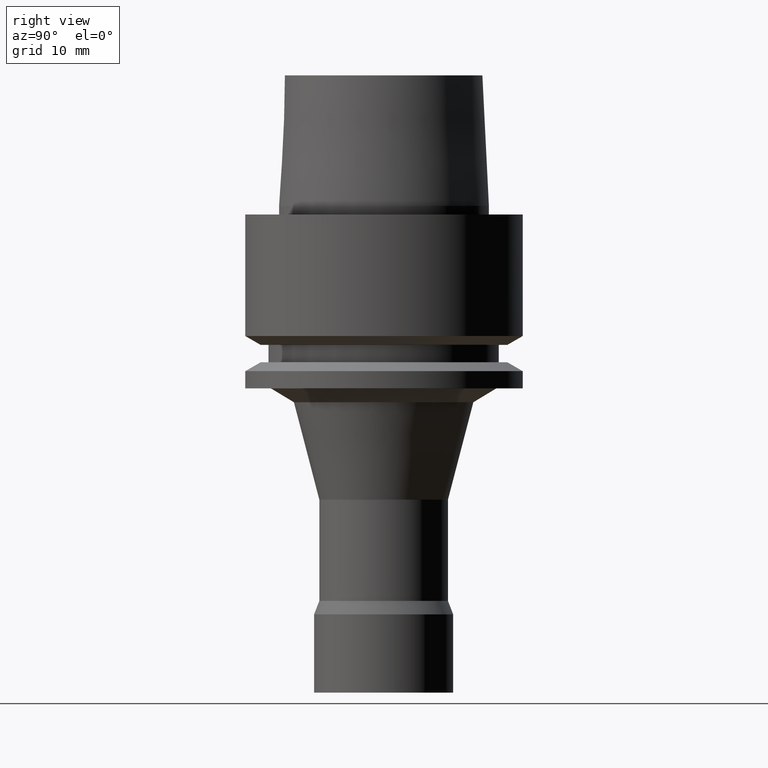
[diagram: clean part render]
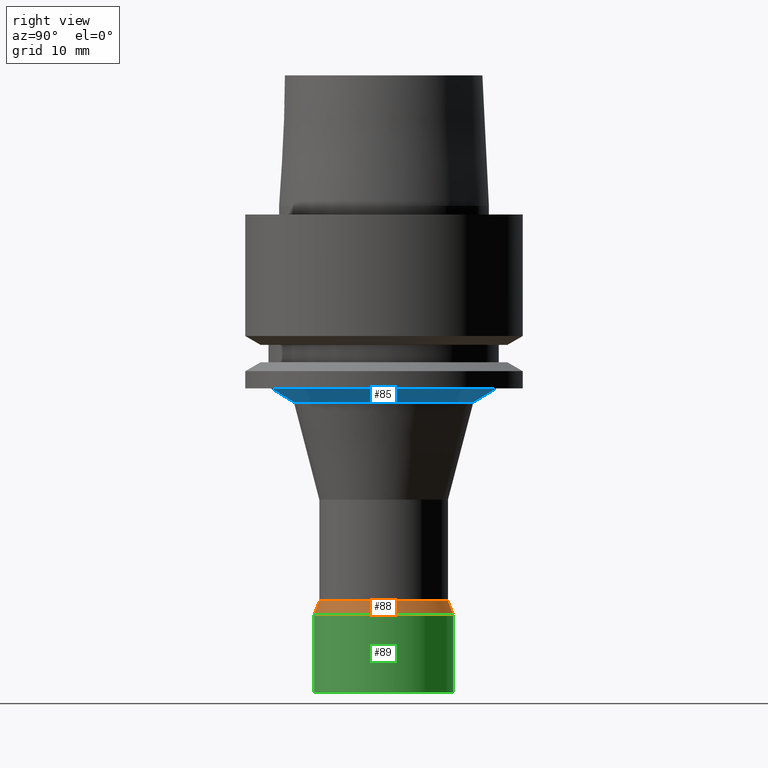
[diagram: same view with three faces highlighted in distinct colors, each labeled with its STEP entity id]
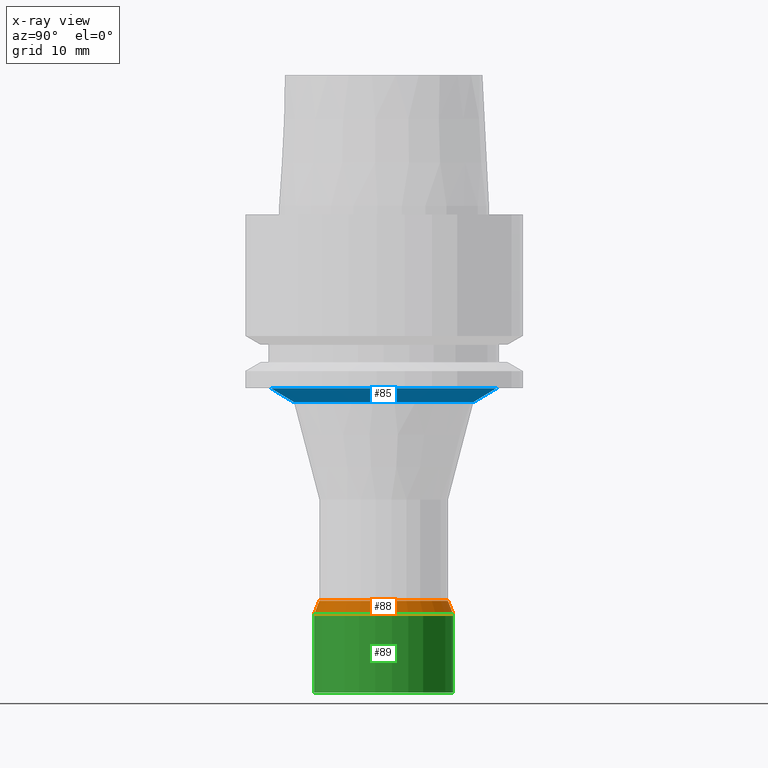
[diagram: x-ray of the same camera — body ghosted, the three highlighted faces saturated]
A machine part, right view with three faces highlighted in distinct colors.
The next image is the same camera in x-ray (body ghosted, the three faces saturated) — at least one of them is partly hidden behind the body in this view.
Their STEP definitions:

[orange] entity #88 — the highlighted conical surface has half-angle 21.168 deg.
#88=ADVANCED_FACE('',(#133,#134),#135,.T.);
#133=FACE_BOUND('',#185,.T.);
#134=FACE_BOUND('',#186,.T.);
#135=CONICAL_SURFACE('',#187,7.7,0.369443265532845);
#185=EDGE_LOOP('',(#263));
#186=EDGE_LOOP('',(#264));
#187=AXIS2_PLACEMENT_3D('',#265,#266,#267);
#263=ORIENTED_EDGE('',*,*,#300,.F.);
#264=ORIENTED_EDGE('',*,*,#299,.T.);
#265=CARTESIAN_POINT('',(2.76924802073587E-015,5.53849604147174E-015,-45.225252255));
#266=DIRECTION('',(6.12323399573677E-017,1.22464679914735E-016,-1.0));
#267=DIRECTION('',(-1.23259516440783E-032,1.0,1.22464679914735E-016));
#299=EDGE_CURVE('',#329,#329,#330,.T.);
#300=EDGE_CURVE('',#331,#331,#332,.T.);
#329=VERTEX_POINT('',#363);
#330=CIRCLE('',#364,7.4);
#331=VERTEX_POINT('',#365);
#332=CIRCLE('',#366,8.0);
#363=CARTESIAN_POINT('',(2.72180840343282E-015,7.40000000000001,-44.45050451));
#364=AXIS2_PLACEMENT_3D('',#410,#411,#412);
#365=CARTESIAN_POINT('',(2.81668763803891E-015,8.00000000000001,-46.0));
#366=AXIS2_PLACEMENT_3D('',#413,#414,#415);
#410=CARTESIAN_POINT('',(2.72180840343282E-015,5.44361680686565E-015,-44.45050451));
#411=DIRECTION('',(6.12323399573677E-017,1.22464679914735E-016,-1.0));
#412=DIRECTION('',(-1.23259516440783E-032,1.0,1.22464679914735E-016));
#413=CARTESIAN_POINT('',(2.81668763803891E-015,5.63337527607782E-015,-46.0));
#414=DIRECTION('',(6.12323399573677E-017,1.22464679914735E-016,-1.0));
#415=DIRECTION('',(-1.23259516440783E-032,1.0,1.22464679914735E-016));

[blue] entity #85 — the highlighted conical surface has half-angle 58.921 deg.
#85=ADVANCED_FACE('',(#124,#125),#126,.T.);
#124=FACE_BOUND('',#176,.T.);
#125=FACE_BOUND('',#177,.T.);
#126=CONICAL_SURFACE('',#178,11.6472496628089,1.02836489206935);
#176=EDGE_LOOP('',(#248));
#177=EDGE_LOOP('',(#249));
#178=AXIS2_PLACEMENT_3D('',#250,#251,#252);
#248=ORIENTED_EDGE('',*,*,#297,.F.);
#249=ORIENTED_EDGE('',*,*,#296,.T.);
#250=CARTESIAN_POINT('',(1.27359893553428E-015,2.54719787106855E-015,-20.7994490561851));
#251=DIRECTION('',(-6.12323399573677E-017,-1.22464679914735E-016,1.0));
#252=DIRECTION('',(-1.23259516440783E-032,1.0,1.22464679914735E-016));
#296=EDGE_CURVE('',#323,#323,#324,.T.);
#297=EDGE_CURVE('',#325,#325,#326,.T.);
#323=VERTEX_POINT('',#357);
#324=CIRCLE('',#358,12.97360873);
#325=VERTEX_POINT('',#359);
#326=CIRCLE('',#360,10.3208905956178);
#357=CARTESIAN_POINT('',(1.22464679914735E-015,12.97360873,-20.0));
#358=AXIS2_PLACEMENT_3D('',#401,#402,#403);
#359=CARTESIAN_POINT('',(1.3225510719212E-015,10.3208905956178,-21.5988981123702));
#360=AXIS2_PLACEMENT_3D('',#404,#405,#406);
#401=CARTESIAN_POINT('',(1.22464679914735E-015,2.44929359829471E-015,-20.0));
#402=DIRECTION('',(6.12323399573677E-017,1.22464679914735E-016,-1.0));
#403=DIRECTION('',(-1.23259516440783E-032,1.0,1.22464679914735E-016));
#404=CARTESIAN_POINT('',(1.3225510719212E-015,2.64510214384239E-015,-21.5988981123702));
#405=DIRECTION('',(6.12323399573677E-017,1.22464679914735E-016,-1.0));
#406=DIRECTION('',(-1.23259516440783E-032,1.0,1.22464679914735E-016));

[green] entity #89 — the highlighted cylindrical surface (bore or boss wall) has radius 8 mm, axis along (-0, -0, 1).
#89=ADVANCED_FACE('',(#136,#137),#138,.T.);
#136=FACE_BOUND('',#188,.T.);
#137=FACE_BOUND('',#189,.T.);
#138=CYLINDRICAL_SURFACE('',#190,8.0);
#188=EDGE_LOOP('',(#268));
#189=EDGE_LOOP('',(#269));
#190=AXIS2_PLACEMENT_3D('',#270,#271,#272);
#268=ORIENTED_EDGE('',*,*,#301,.F.);
#269=ORIENTED_EDGE('',*,*,#300,.T.);
#270=CARTESIAN_POINT('',(3.09223316784707E-015,6.18446633569413E-015,-50.5));
#271=DIRECTION('',(-6.12323399573677E-017,-1.22464679914735E-016,1.0));
#272=DIRECTION('',(-1.23259516440783E-032,1.0,1.22464679914735E-016));
#300=EDGE_CURVE('',#331,#331,#332,.T.);
#301=EDGE_CURVE('',#333,#333,#334,.T.);
#331=VERTEX_POINT('',#365);
#332=CIRCLE('',#366,8.0);
#333=VERTEX_POINT('',#367);
#334=CIRCLE('',#368,8.0);
#365=CARTESIAN_POINT('',(2.81668763803891E-015,8.00000000000001,-46.0));
#366=AXIS2_PLACEMENT_3D('',#413,#414,#415);
#367=CARTESIAN_POINT('',(3.36777869765522E-015,8.00000000000001,-55.0));
#368=AXIS2_PLACEMENT_3D('',#416,#417,#418);
#413=CARTESIAN_POINT('',(2.81668763803891E-015,5.63337527607782E-015,-46.0));
#414=DIRECTION('',(6.12323399573677E-017,1.22464679914735E-016,-1.0));
#415=DIRECTION('',(-1.23259516440783E-032,1.0,1.22464679914735E-016));
#416=CARTESIAN_POINT('',(3.36777869765522E-015,6.73555739531044E-015,-55.0));
#417=DIRECTION('',(6.12323399573677E-017,1.22464679914735E-016,-1.0));
#418=DIRECTION('',(-1.23259516440783E-032,1.0,1.22464679914735E-016));